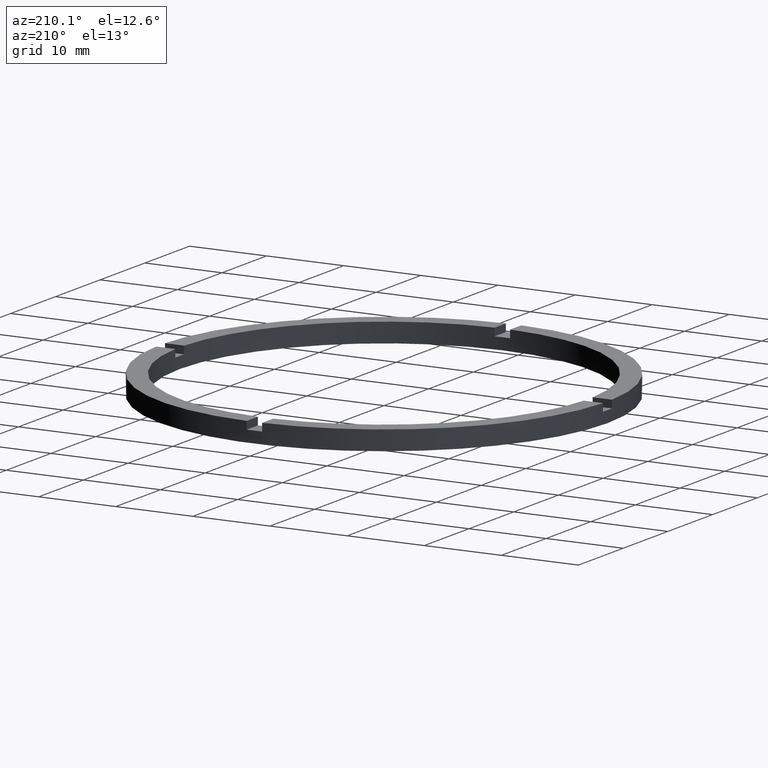
[diagram: clean part render]
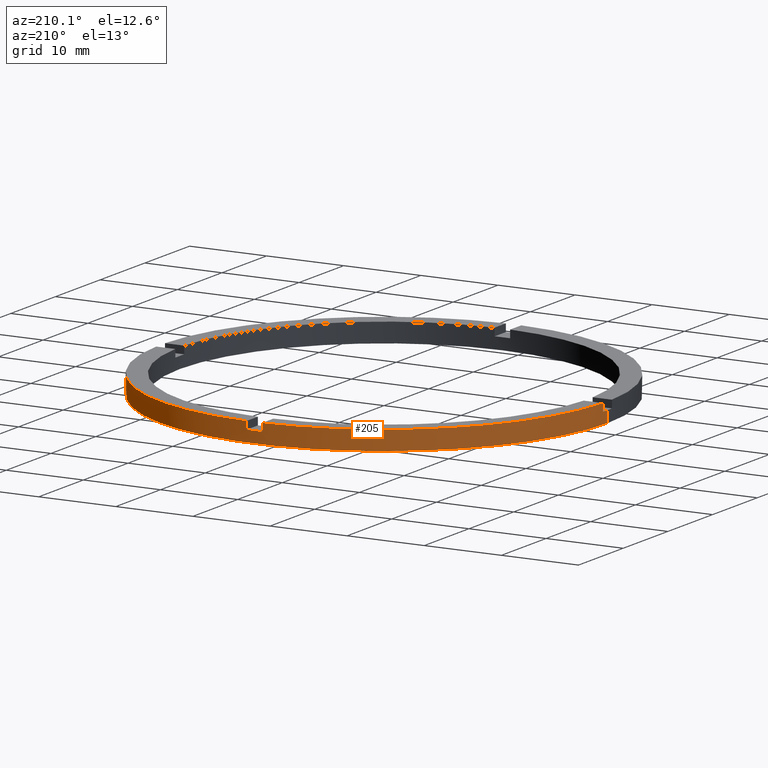
[diagram: same view with one face highlighted and labeled with its STEP entity id]
A machine part, auxiliary view. The second image highlights one B-rep face of the part: STEP entity #205.
In plain terms, the highlighted cylindrical surface (partial cylindrical patch) has radius 29 mm, axis along (-0, -0, -1).
Its self-contained STEP definition (entity closure, byte-faithful):
#3 = CARTESIAN_POINT ( 'NONE',  ( 0.000000000000000000, 0.000000000000000000, 1.500000000000000000 ) ) ;
#9 = AXIS2_PLACEMENT_3D ( 'NONE', #301, #612, #59 ) ;
#14 = AXIS2_PLACEMENT_3D ( 'NONE', #781, #676, #436 ) ;
#15 = ORIENTED_EDGE ( 'NONE', *, *, #142, .T. ) ;
#16 = ORIENTED_EDGE ( 'NONE', *, *, #157, .T. ) ;
#19 = CARTESIAN_POINT ( 'NONE',  ( 29.00000000000000000, 3.551475717527324030E-15, 1.500000000000000000 ) ) ;
#40 = ORIENTED_EDGE ( 'NONE', *, *, #537, .T. ) ;
#48 = ORIENTED_EDGE ( 'NONE', *, *, #124, .F. ) ;
#59 = DIRECTION ( 'NONE',  ( 1.000000000000000000, 0.000000000000000000, 0.000000000000000000 ) ) ;
#64 = EDGE_CURVE ( 'NONE', #550, #541, #594, .T. ) ;
#66 = CARTESIAN_POINT ( 'NONE',  ( 29.00000000000000000, 3.551475717527324030E-15, 0.000000000000000000 ) ) ;
#68 = LINE ( 'NONE', #339, #317 ) ;
#72 = VECTOR ( 'NONE', #626, 1000.000000000000000 ) ;
#96 = CARTESIAN_POINT ( 'NONE',  ( 0.9999999999999733546, 28.98275349237887966, 2.500000000000000000 ) ) ;
#101 = LINE ( 'NONE', #277, #624 ) ;
#104 = DIRECTION ( 'NONE',  ( 1.000000000000000000, 0.000000000000000000, 0.000000000000000000 ) ) ;
#113 = CIRCLE ( 'NONE', #702, 29.00000000000000000 ) ;
#124 = EDGE_CURVE ( 'NONE', #726, #287, #337, .T. ) ;
#129 = EDGE_CURVE ( 'NONE', #563, #649, #599, .T. ) ;
#138 = VERTEX_POINT ( 'NONE', #650 ) ;
#139 = DIRECTION ( 'NONE',  ( 0.000000000000000000, 0.000000000000000000, 1.000000000000000000 ) ) ;
#142 = EDGE_CURVE ( 'NONE', #406, #649, #68, .T. ) ;
#143 = ORIENTED_EDGE ( 'NONE', *, *, #244, .F. ) ;
#148 = CARTESIAN_POINT ( 'NONE',  ( -28.98275349237887966, 0.9999999999999726885, 1.500000000000000000 ) ) ;
#157 = EDGE_CURVE ( 'NONE', #726, #660, #344, .T. ) ;
#158 = CARTESIAN_POINT ( 'NONE',  ( 0.000000000000000000, 0.000000000000000000, 0.000000000000000000 ) ) ;
#160 = CARTESIAN_POINT ( 'NONE',  ( 0.000000000000000000, 0.000000000000000000, 2.500000000000000000 ) ) ;
#178 = DIRECTION ( 'NONE',  ( 1.000000000000000000, 0.000000000000000000, 0.000000000000000000 ) ) ;
#179 = CIRCLE ( 'NONE', #187, 29.00000000000000000 ) ;
#187 = AXIS2_PLACEMENT_3D ( 'NONE', #668, #672, #666 ) ;
#190 = DIRECTION ( 'NONE',  ( 0.000000000000000000, 0.000000000000000000, 1.000000000000000000 ) ) ;
#198 = LINE ( 'NONE', #644, #437 ) ;
#205 = ADVANCED_FACE ( 'NONE', ( #615 ), #340, .T. ) ;
#211 = DIRECTION ( 'NONE',  ( 0.000000000000000000, 0.000000000000000000, 1.000000000000000000 ) ) ;
#212 = ORIENTED_EDGE ( 'NONE', *, *, #129, .F. ) ;
#213 = ORIENTED_EDGE ( 'NONE', *, *, #721, .F. ) ;
#244 = EDGE_CURVE ( 'NONE', #291, #660, #320, .T. ) ;
#248 = CARTESIAN_POINT ( 'NONE',  ( -29.00000000000000000, 0.000000000000000000, 0.000000000000000000 ) ) ;
#251 = DIRECTION ( 'NONE',  ( 0.000000000000000000, 0.000000000000000000, 1.000000000000000000 ) ) ;
#255 = AXIS2_PLACEMENT_3D ( 'NONE', #160, #648, #104 ) ;
#256 = CARTESIAN_POINT ( 'NONE',  ( -28.98275349237887966, 0.9999999999999726885, 2.500000000000000000 ) ) ;
#259 = CARTESIAN_POINT ( 'NONE',  ( 0.000000000000000000, 0.000000000000000000, 2.500000000000000000 ) ) ;
#272 = CARTESIAN_POINT ( 'NONE',  ( 28.98275349237888321, 0.9999999999998432365, 2.500000000000000000 ) ) ;
#273 = EDGE_LOOP ( 'NONE', ( #143, #397, #733, #572, #282, #15, #212, #40, #213, #552, #48, #16 ) ) ;
#277 = CARTESIAN_POINT ( 'NONE',  ( 29.00000000000000000, 3.551475717527324030E-15, 2.500000000000000000 ) ) ;
#282 = ORIENTED_EDGE ( 'NONE', *, *, #688, .F. ) ;
#287 = VERTEX_POINT ( 'NONE', #96 ) ;
#291 = VERTEX_POINT ( 'NONE', #19 ) ;
#301 = CARTESIAN_POINT ( 'NONE',  ( 0.000000000000000000, 0.000000000000000000, 1.500000000000000000 ) ) ;
#317 = VECTOR ( 'NONE', #408, 1000.000000000000000 ) ;
#320 = CIRCLE ( 'NONE', #383, 29.00000000000000000 ) ;
#337 = CIRCLE ( 'NONE', #255, 29.00000000000000000 ) ;
#339 = CARTESIAN_POINT ( 'NONE',  ( -28.98275349237887966, 0.9999999999999726885, 2.500000000000000000 ) ) ;
#340 = CYLINDRICAL_SURFACE ( 'NONE', #14, 29.00000000000000000 ) ;
#344 = LINE ( 'NONE', #701, #610 ) ;
#383 = AXIS2_PLACEMENT_3D ( 'NONE', #3, #139, #178 ) ;
#393 = EDGE_CURVE ( 'NONE', #291, #759, #101, .T. ) ;
#395 = CARTESIAN_POINT ( 'NONE',  ( -1.000000000000026645, 28.98275349237887610, 1.500000000000000000 ) ) ;
#397 = ORIENTED_EDGE ( 'NONE', *, *, #393, .T. ) ;
#406 = VERTEX_POINT ( 'NONE', #148 ) ;
#408 = DIRECTION ( 'NONE',  ( 0.000000000000000000, 0.000000000000000000, 1.000000000000000000 ) ) ;
#412 = EDGE_CURVE ( 'NONE', #759, #541, #113, .T. ) ;
#436 = DIRECTION ( 'NONE',  ( -1.000000000000000000, 0.000000000000000000, 0.000000000000000000 ) ) ;
#437 = VECTOR ( 'NONE', #190, 1000.000000000000000 ) ;
#443 = CARTESIAN_POINT ( 'NONE',  ( -29.00000000000000000, 0.000000000000000000, 2.500000000000000000 ) ) ;
#464 = CARTESIAN_POINT ( 'NONE',  ( -1.000000000000026645, 28.98275349237887610, 2.500000000000000000 ) ) ;
#473 = DIRECTION ( 'NONE',  ( 1.000000000000000000, 0.000000000000000000, 0.000000000000000000 ) ) ;
#479 = DIRECTION ( 'NONE',  ( -0.000000000000000000, -0.000000000000000000, -1.000000000000000000 ) ) ;
#508 = DIRECTION ( 'NONE',  ( 1.000000000000000000, 0.000000000000000000, 0.000000000000000000 ) ) ;
#537 = EDGE_CURVE ( 'NONE', #563, #574, #722, .T. ) ;
#541 = VERTEX_POINT ( 'NONE', #248 ) ;
#550 = VERTEX_POINT ( 'NONE', #559 ) ;
#552 = ORIENTED_EDGE ( 'NONE', *, *, #582, .T. ) ;
#559 = CARTESIAN_POINT ( 'NONE',  ( -29.00000000000000000, 0.000000000000000000, 1.500000000000000000 ) ) ;
#563 = VERTEX_POINT ( 'NONE', #693 ) ;
#572 = ORIENTED_EDGE ( 'NONE', *, *, #64, .F. ) ;
#574 = VERTEX_POINT ( 'NONE', #395 ) ;
#582 = EDGE_CURVE ( 'NONE', #138, #287, #198, .T. ) ;
#594 = LINE ( 'NONE', #443, #72 ) ;
#599 = CIRCLE ( 'NONE', #749, 29.00000000000000000 ) ;
#604 = CARTESIAN_POINT ( 'NONE',  ( 28.98275349237888321, 0.9999999999998432365, 1.500000000000000000 ) ) ;
#610 = VECTOR ( 'NONE', #764, 1000.000000000000000 ) ;
#612 = DIRECTION ( 'NONE',  ( 0.000000000000000000, -0.000000000000000000, 1.000000000000000000 ) ) ;
#615 = FACE_OUTER_BOUND ( 'NONE', #273, .T. ) ;
#624 = VECTOR ( 'NONE', #479, 1000.000000000000000 ) ;
#626 = DIRECTION ( 'NONE',  ( -0.000000000000000000, -0.000000000000000000, -1.000000000000000000 ) ) ;
#644 = CARTESIAN_POINT ( 'NONE',  ( 0.9999999999999733546, 28.98275349237887966, 2.500000000000000000 ) ) ;
#648 = DIRECTION ( 'NONE',  ( 0.000000000000000000, 0.000000000000000000, 1.000000000000000000 ) ) ;
#649 = VERTEX_POINT ( 'NONE', #256 ) ;
#650 = CARTESIAN_POINT ( 'NONE',  ( 0.9999999999999733546, 28.98275349237887966, 1.500000000000000000 ) ) ;
#660 = VERTEX_POINT ( 'NONE', #604 ) ;
#666 = DIRECTION ( 'NONE',  ( 1.000000000000000000, 0.000000000000000000, 0.000000000000000000 ) ) ;
#668 = CARTESIAN_POINT ( 'NONE',  ( 0.000000000000000000, 0.000000000000000000, 1.500000000000000000 ) ) ;
#672 = DIRECTION ( 'NONE',  ( 0.000000000000000000, 0.000000000000000000, 1.000000000000000000 ) ) ;
#676 = DIRECTION ( 'NONE',  ( -0.000000000000000000, -0.000000000000000000, -1.000000000000000000 ) ) ;
#688 = EDGE_CURVE ( 'NONE', #406, #550, #179, .T. ) ;
#693 = CARTESIAN_POINT ( 'NONE',  ( -1.000000000000026645, 28.98275349237887610, 2.500000000000000000 ) ) ;
#701 = CARTESIAN_POINT ( 'NONE',  ( 28.98275349237888321, 0.9999999999998432365, 2.500000000000000000 ) ) ;
#702 = AXIS2_PLACEMENT_3D ( 'NONE', #158, #251, #508 ) ;
#718 = CIRCLE ( 'NONE', #9, 29.00000000000000000 ) ;
#721 = EDGE_CURVE ( 'NONE', #138, #574, #718, .T. ) ;
#722 = LINE ( 'NONE', #464, #727 ) ;
#726 = VERTEX_POINT ( 'NONE', #272 ) ;
#727 = VECTOR ( 'NONE', #766, 1000.000000000000000 ) ;
#733 = ORIENTED_EDGE ( 'NONE', *, *, #412, .T. ) ;
#749 = AXIS2_PLACEMENT_3D ( 'NONE', #259, #211, #473 ) ;
#759 = VERTEX_POINT ( 'NONE', #66 ) ;
#764 = DIRECTION ( 'NONE',  ( -0.000000000000000000, -0.000000000000000000, -1.000000000000000000 ) ) ;
#766 = DIRECTION ( 'NONE',  ( -0.000000000000000000, -0.000000000000000000, -1.000000000000000000 ) ) ;
#781 = CARTESIAN_POINT ( 'NONE',  ( 0.000000000000000000, 0.000000000000000000, 2.500000000000000000 ) ) ;